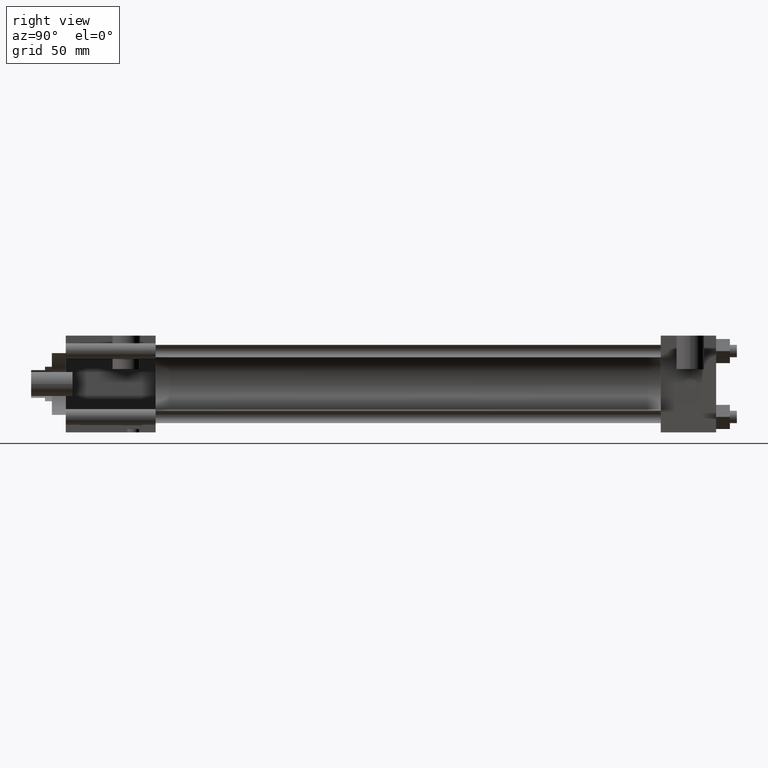
[diagram: clean part render]
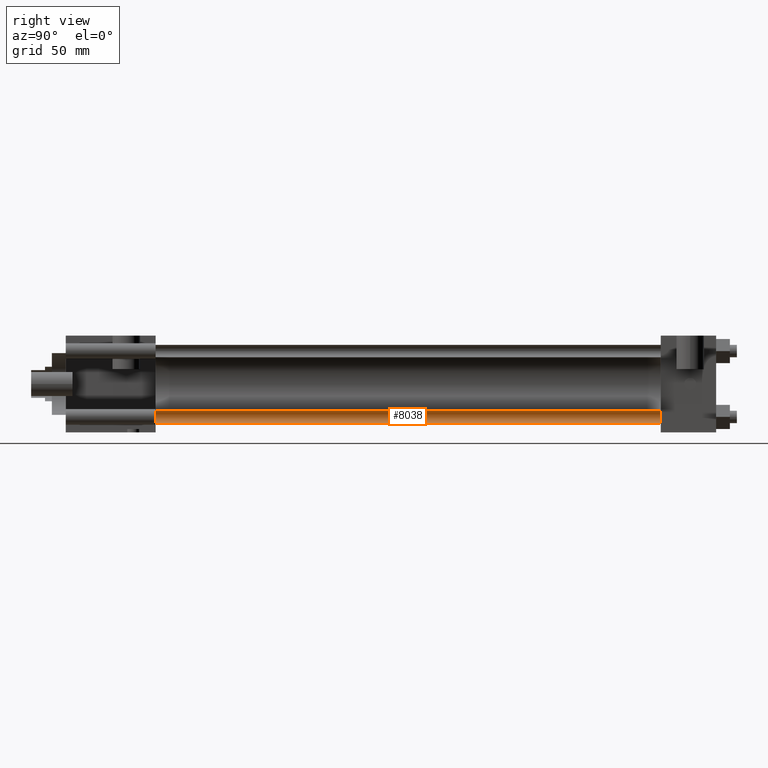
[diagram: same view with one face highlighted and labeled with its STEP entity id]
A machine part, right view. The second image highlights one B-rep face of the part: STEP entity #8038.
In plain terms, the highlighted cylindrical surface (bore or boss wall) has radius 2.8575 mm, axis along (0, -1, 0).
Its self-contained STEP definition (entity closure, byte-faithful):
#916=EDGE_CURVE('',#922,#922,#917,.T.);
#917=CIRCLE('',#918,2.857500000E+000);
#918=AXIS2_PLACEMENT_3D('',#919,#920,#921);
#919=CARTESIAN_POINT('',(1.511300000E+001,5.715000000E+001,-1.511300000E+001));
#920=DIRECTION('',(0.0E+000,1.0E+000,0.0E+000));
#921=DIRECTION('',(0.0E+000,0.0E+000,1.0E+000));
#922=VERTEX_POINT('',#923);
#923=CARTESIAN_POINT('',(1.511300000E+001,5.715000000E+001,-1.225550000E+001));
#1086=FACE_OUTER_BOUND('',#1088,.T.);
#1087=FACE_BOUND('',#1089,.T.);
#1088=EDGE_LOOP('',(#1090));
#1089=EDGE_LOOP('',(#1091));
#1090=ORIENTED_EDGE('',*,*,#1140,.F.);
#1091=ORIENTED_EDGE('',*,*,#916,.T.);
#1092=CYLINDRICAL_SURFACE('',#1093,2.857500000E+000);
#1093=AXIS2_PLACEMENT_3D('',#1094,#1095,#1096);
#1094=CARTESIAN_POINT('',(1.511300000E+001,2.889250000E+002,-1.511300000E+001));
#1095=DIRECTION('',(0.0E+000,-1.0E+000,0.0E+000));
#1096=DIRECTION('',(0.0E+000,0.0E+000,-1.0E+000));
#1140=EDGE_CURVE('',#1146,#1146,#1141,.T.);
#1141=CIRCLE('',#1142,2.857500000E+000);
#1142=AXIS2_PLACEMENT_3D('',#1143,#1144,#1145);
#1143=CARTESIAN_POINT('',(1.511300000E+001,2.889250000E+002,-1.511300000E+001));
#1144=DIRECTION('',(0.0E+000,1.0E+000,0.0E+000));
#1145=DIRECTION('',(1.0E+000,0.0E+000,0.0E+000));
#1146=VERTEX_POINT('',#1147);
#1147=CARTESIAN_POINT('',(1.797050000E+001,2.889250000E+002,-1.511300000E+001));
#8038=ADVANCED_FACE('',(#1086,#1087),#1092,.T.);